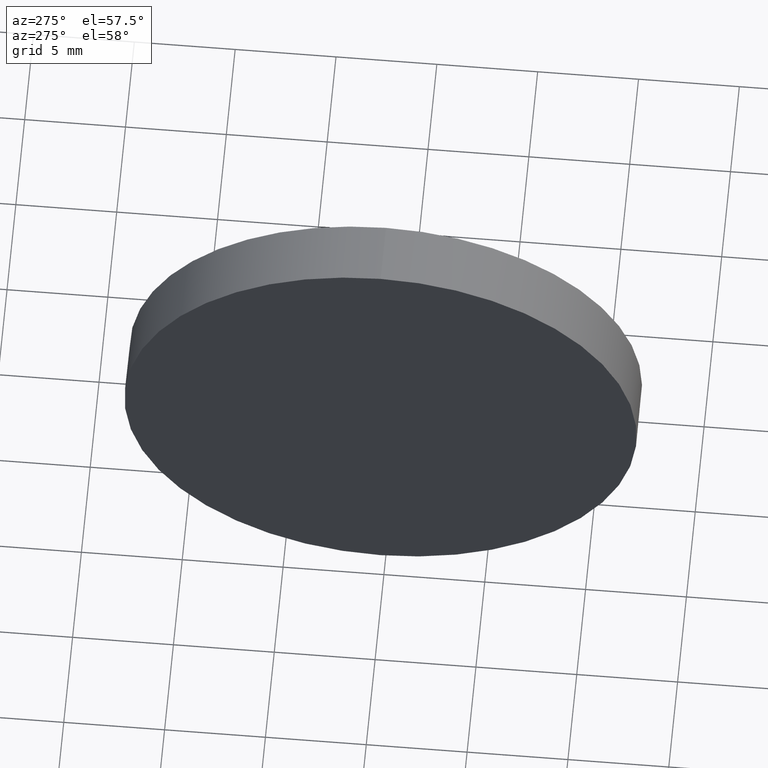
[diagram: clean part render]
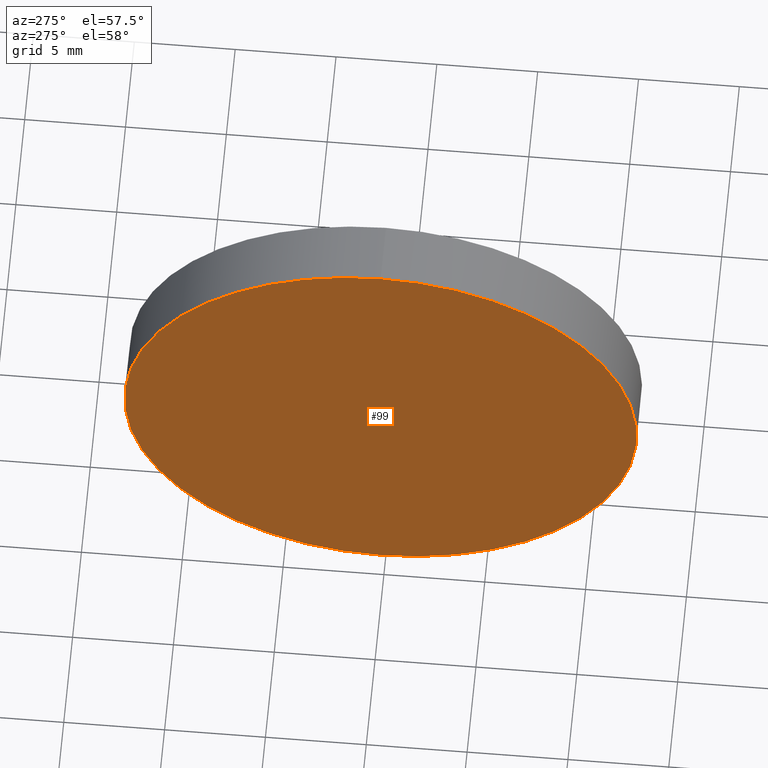
[diagram: same view with one face highlighted and labeled with its STEP entity id]
A machine part, auxiliary view. The second image highlights one B-rep face of the part: STEP entity #99.
In plain terms, the highlighted planar face has unit normal (1, 0, 0).
Its self-contained STEP definition (entity closure, byte-faithful):
#6 = AXIS2_PLACEMENT_3D ( 'NONE', #106, #137, #122 ) ;
#10 = ORIENTED_EDGE ( 'NONE', *, *, #88, .T. ) ;
#22 = CARTESIAN_POINT ( 'NONE',  ( 115.7736064308381300, 65.23355492641219700, 0.0000000000000000000 ) ) ;
#23 = VERTEX_POINT ( 'NONE', #135 ) ;
#38 = AXIS2_PLACEMENT_3D ( 'NONE', #117, #151, #72 ) ;
#41 = CIRCLE ( 'NONE', #38, 12.70000000000000300 ) ;
#42 = DIRECTION ( 'NONE',  ( 1.000000000000000000, 0.0000000000000000000, 0.0000000000000000000 ) ) ;
#43 = FACE_OUTER_BOUND ( 'NONE', #111, .T. ) ;
#45 = VERTEX_POINT ( 'NONE', #73 ) ;
#72 = DIRECTION ( 'NONE',  ( 0.0000000000000000000, 0.0000000000000000000, 1.000000000000000000 ) ) ;
#73 = CARTESIAN_POINT ( 'NONE',  ( 115.7736064308381300, 65.23355492641219700, -12.70000000000000300 ) ) ;
#80 = CIRCLE ( 'NONE', #6, 12.70000000000000300 ) ;
#83 = ORIENTED_EDGE ( 'NONE', *, *, #168, .T. ) ;
#88 = EDGE_CURVE ( 'NONE', #45, #23, #41, .T. ) ;
#99 = ADVANCED_FACE ( 'NONE', ( #43 ), #101, .F. ) ;
#100 = AXIS2_PLACEMENT_3D ( 'NONE', #22, #42, #133 ) ;
#101 = PLANE ( 'NONE',  #100 ) ;
#106 = CARTESIAN_POINT ( 'NONE',  ( 115.7736064308381300, 65.23355492641219700, 0.0000000000000000000 ) ) ;
#111 = EDGE_LOOP ( 'NONE', ( #83, #10 ) ) ;
#117 = CARTESIAN_POINT ( 'NONE',  ( 115.7736064308381300, 65.23355492641219700, 0.0000000000000000000 ) ) ;
#122 = DIRECTION ( 'NONE',  ( 0.0000000000000000000, 0.0000000000000000000, 1.000000000000000000 ) ) ;
#133 = DIRECTION ( 'NONE',  ( 0.0000000000000000000, 0.0000000000000000000, -1.000000000000000000 ) ) ;
#135 = CARTESIAN_POINT ( 'NONE',  ( 115.7736064308381300, 65.23355492641219700, 12.70000000000000300 ) ) ;
#137 = DIRECTION ( 'NONE',  ( -1.000000000000000000, -0.0000000000000000000, -0.0000000000000000000 ) ) ;
#151 = DIRECTION ( 'NONE',  ( -1.000000000000000000, -0.0000000000000000000, -0.0000000000000000000 ) ) ;
#168 = EDGE_CURVE ( 'NONE', #23, #45, #80, .T. ) ;